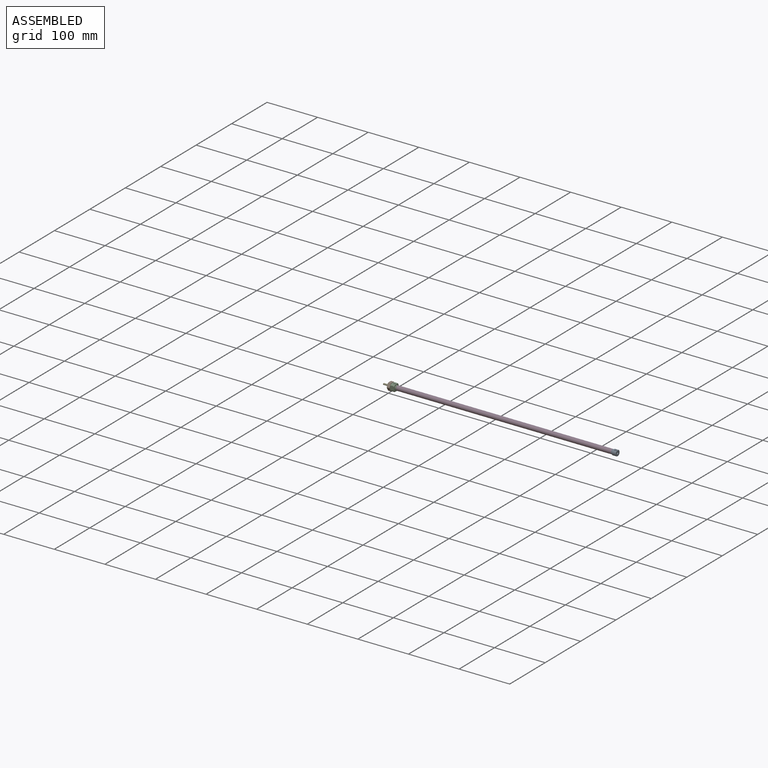
[diagram: assembled view]
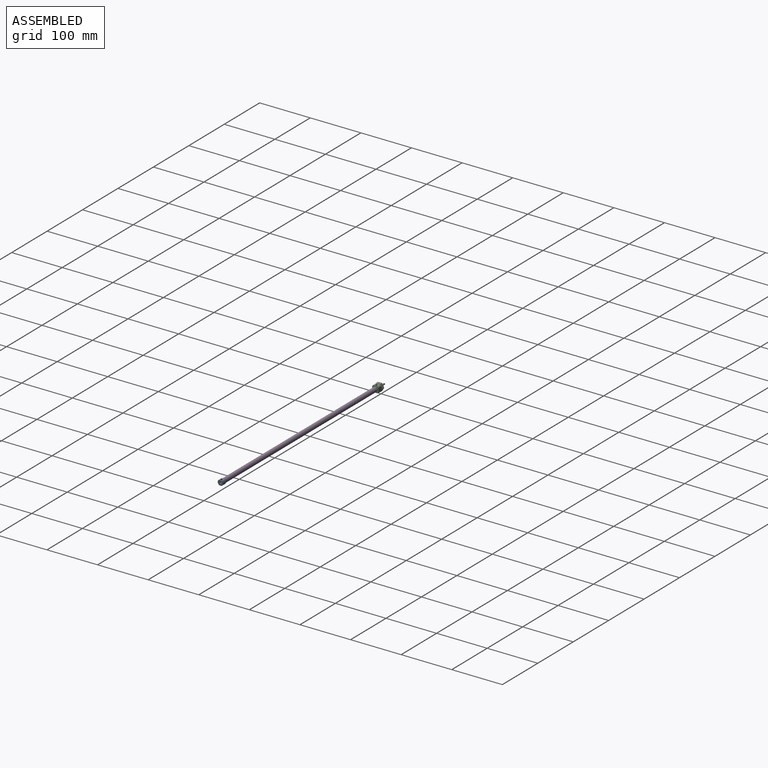
[diagram: assembled view, second angle]
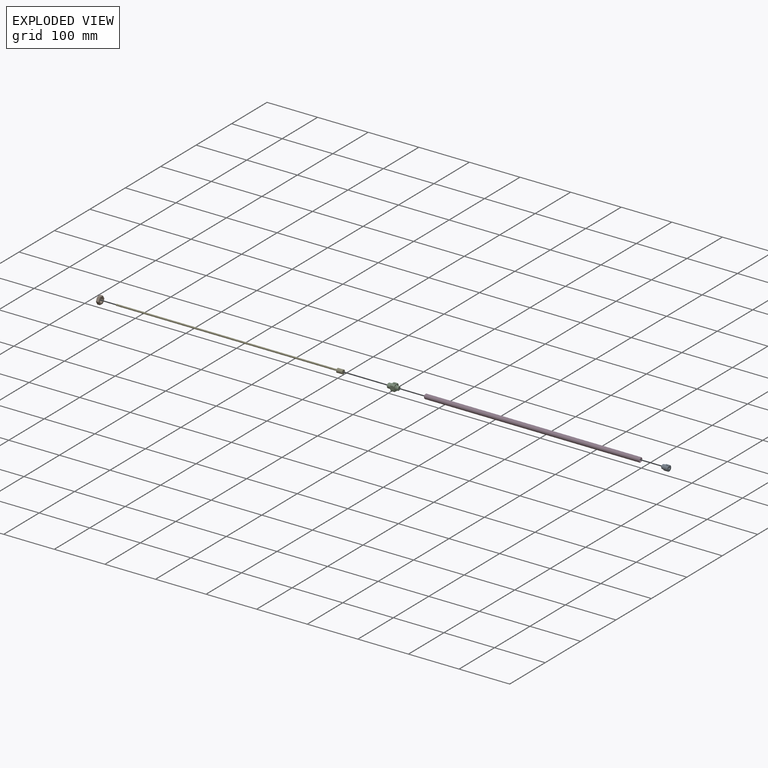
[diagram: exploded view]
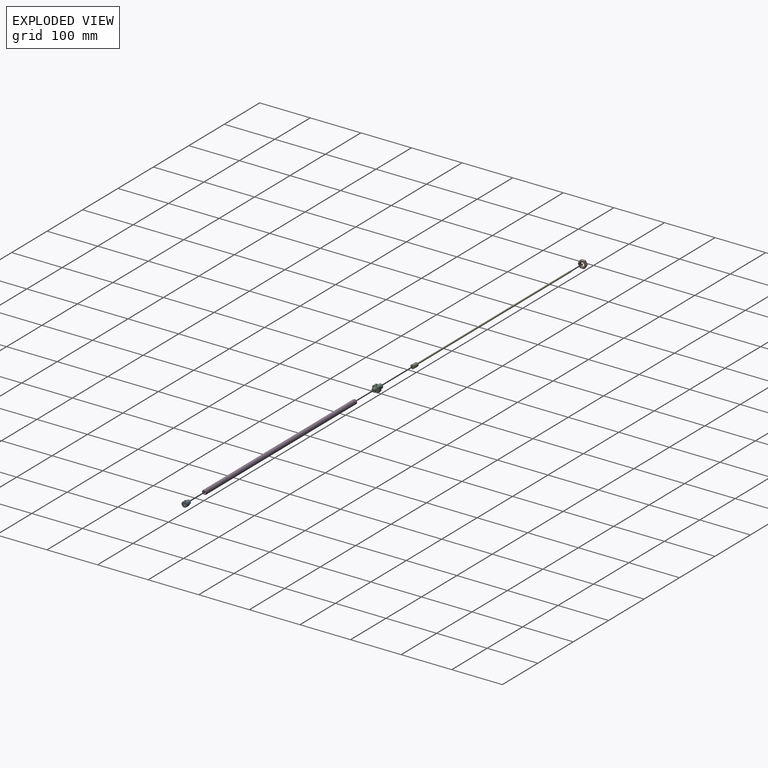
[diagram: exploded view, second angle]
ASSEMBLY  parts=5 mates=4
PART A: 24 faces, bbox 13.6x11.1x10.3 mm
  f0: cylinder r=1.98mm len=13.55mm, axis (-1,0,0), area 153.2mm2, adj f11,f14,f21
  f1: plane 8.22x6.46mm, normal (0,0,1), area 34.4mm2, adj f2,f3,f12,f20,f21,f22,f23
  f2: cone r=5.31mm half-angle=45deg, axis (1,0,0), area 10mm2, adj f1,f3,f23
  f3: plane 10.62x9.84mm, normal (-1,0,0), area 20.3mm2, adj f1,f2,f4
  f4: cylinder r=4.56mm len=9.12mm, axis (-1,0,0), area 30.6mm2, adj f3,f5,f20
  f5: cone r=4.31mm half-angle=45deg, axis (1,0,0), area 10mm2, adj f4,f6
  f6: plane 8.61x8.61mm, normal (-1,0,0), area 6.9mm2, adj f5,f19
  f7: cylinder r=3.52mm len=7.05mm, axis (-1,0,0), area 6.2mm2, adj f8,f18
  f8: cone r=4.08mm half-angle=45deg, axis (-1,0,0), area 18.9mm2, adj f7,f9
  f9: cylinder r=4.08mm len=8.17mm, axis (-1,0,0), area 61.6mm2, adj f8,f10
  f10: cone r=3.58mm half-angle=45deg, axis (1,0,0), area 17.3mm2, adj f9,f11
  f11: plane 7.15x7.15mm, normal (-1,0,0), area 27.8mm2, adj f0,f10
  f12: cone r=1.98mm half-angle=45deg, axis (0,0,1), area 8.4mm2, adj f1,f14
  f13: cylinder r=4.56mm len=9.12mm, axis (-1,0,0), area 5.8mm2, adj f15,f19
  f14: cylinder r=1.98mm len=4.1mm, axis (0,0,-1), area 35.4mm2, adj f0,f12
  f15: plane 9.12x9.12mm, normal (-1,0,0), area 2.4mm2, adj f13,f16
  f16: cone r=4.48mm half-angle=45deg, axis (-1,0,0), area 22.5mm2, adj f15,f17
  f17: torus R=3.78mm, axis (1,0,0), area 4.7mm2, adj f16,f18
  f18: cone r=3.69mm half-angle=45deg, axis (1,0,0), area 5.3mm2, adj f7,f17
  f19: cone r=4.04mm half-angle=45deg, axis (-1,0,0), area 19.7mm2, adj f6,f13
  f20: plane 0.96x0.03mm, normal (1,0,0), area 0mm2, adj f1,f4
  f21: plane 10.62x9.84mm, normal (1,0,0), area 73.3mm2, adj f0,f1,f22
  f22: cone r=5.56mm half-angle=45deg, axis (-1,0,0), area 10mm2, adj f1,f21,f23
  f23: cylinder r=5.56mm len=11.13mm, axis (-1,0,0), area 216.1mm2, adj f1,f2,f22
PART B: 23 faces, bbox 17x17x6.2 mm
  f0: plane 7.71x6.18mm, normal (0.5,-0.87,0), area 44.2mm2, adj f1,f6,f8,f10,f18,f19
  f1: plane 7.71x6.18mm, normal (-0.5,-0.87,0), area 44.2mm2, adj f0,f3,f7,f10,f17,f18
  f2: plane 14.22x14.22mm, normal (0,0,-1), area 87.6mm2, adj f7,f8,f9,f10,f12,f13,f15
  f3: cone r=7.11mm half-angle=75deg, axis (0,0,-1), area 4.5mm2, adj f1,f16,f17
  f4: plane 7.71x6.18mm, normal (-0.5,0.87,0), area 44.2mm2, adj f5,f9,f13,f17,f21,f22
  f5: plane 7.71x6.18mm, normal (0.5,0.87,0), area 44.2mm2, adj f4,f6,f12,f13,f20,f21
  f6: plane 8.82x6.2mm, normal (1,0,0), area 44.2mm2, adj f0,f5,f8,f12,f19,f20
  f7: cone r=8.53mm half-angle=75deg, axis (0,0,1), area 4.5mm2, adj f1,f2,f17
  f8: cone r=8.53mm half-angle=75deg, axis (0,0,1), area 4.5mm2, adj f0,f2,f6
  f9: cone r=8.53mm half-angle=75deg, axis (0,0,1), area 4.5mm2, adj f2,f4,f17
  f10: cone r=8.53mm half-angle=75deg, axis (0,0,1), area 4.5mm2, adj f0,f1,f2
  f11: cone r=4.76mm half-angle=45deg, axis (0,0,1), area 22.8mm2, adj f14,f16
  f12: cone r=8.53mm half-angle=75deg, axis (0,0,1), area 4.5mm2, adj f2,f5,f6
  f13: cone r=8.53mm half-angle=75deg, axis (0,0,1), area 4.5mm2, adj f2,f4,f5
  f14: cylinder r=4.19mm len=8.38mm, axis (0,0,1), area 116.9mm2, adj f11,f15
  f15: cone r=4.19mm half-angle=45deg, axis (0,0,-1), area 22.8mm2, adj f2,f14
  f16: plane 14.22x14.22mm, normal (0,0,1), area 87.6mm2, adj f3,f11,f18,f19,f20,f21,f22
  f17: plane 8.82x6.2mm, normal (-1,0,0), area 44.2mm2, adj f1,f3,f4,f7,f9,f22
  f18: cone r=7.11mm half-angle=75deg, axis (0,0,-1), area 4.5mm2, adj f0,f1,f16
  f19: cone r=7.11mm half-angle=75deg, axis (0,0,-1), area 4.5mm2, adj f0,f6,f16
  f20: cone r=7.11mm half-angle=75deg, axis (0,0,-1), area 4.5mm2, adj f5,f6,f16
  f21: cone r=7.11mm half-angle=75deg, axis (0,0,-1), area 4.5mm2, adj f4,f5,f16
  f22: cone r=7.11mm half-angle=75deg, axis (0,0,-1), area 4.5mm2, adj f4,f16,f17
PART C: 40 faces, bbox 21.6x14.2x14.2 mm
  f0: plane 8.78x8.06mm, normal (0,-1,0), area 66.4mm2, adj f7,f19,f27,f28,f32,f33,f35,f37
  f1: cone r=6.92mm half-angle=45deg, axis (1,0,0), area 4.4mm2, adj f2,f31,f34,f37
  f2: plane 8.78x8.06mm, normal (0,1,0), area 66.4mm2, adj f1,f19,f20,f29,f34,f36,f37,f39
  f3: cylinder r=1.98mm len=5.92mm, axis (0,0,-1), area 65.9mm2, adj f4,f5,f6,f10
  f4: plane 2.27x0.36mm, normal (0,0,1), area 0.6mm2, adj f3,f6
  f5: plane 2.27x0.36mm, normal (0,0,1), area 0.6mm2, adj f3,f6
  f6: cylinder r=1.63mm len=21.08mm, axis (-1,0,0), area 201.6mm2, adj f3,f4,f5,f23,f24
  f7: cone r=6.92mm half-angle=45deg, axis (1,0,0), area 4.4mm2, adj f0,f31,f33,f37
  f8: cone r=3.52mm half-angle=45deg, axis (1,0,0), area 18.9mm2, adj f9,f21
  f9: cylinder r=3.52mm len=7.05mm, axis (-1,0,0), area 6.2mm2, adj f8,f12
  f10: cone r=1.98mm half-angle=45deg, axis (0,0,1), area 8.4mm2, adj f3,f31
  f11: cone r=4.56mm half-angle=45deg, axis (1,0,0), area 19.7mm2, adj f16,f17
  f12: cone r=3.52mm half-angle=45deg, axis (-1,0,0), area 5.3mm2, adj f9,f13
  f13: torus R=3.78mm, axis (1,0,0), area 4.7mm2, adj f12,f14
  f14: cone r=3.87mm half-angle=45deg, axis (1,0,0), area 22.5mm2, adj f13,f15
  f15: plane 9.12x9.12mm, normal (1,0,0), area 2.4mm2, adj f14,f16
  f16: cylinder r=4.56mm len=9.12mm, axis (-1,0,0), area 5.8mm2, adj f11,f15
  f17: plane 9.12x9.12mm, normal (1,0,0), area 14mm2, adj f11,f18
  f18: cylinder r=4.56mm len=9.12mm, axis (-1,0,0), area 45.1mm2, adj f17,f19
  f19: plane 12.7x12.7mm, normal (1,0,0), area 76.7mm2, adj f0,f2,f18,f20,f27,f28,f29,f30
  f20: cone r=7.68mm half-angle=45deg, axis (-1,0,0), area 4.4mm2, adj f2,f19,f30,f36
  f21: cylinder r=4.08mm len=8.17mm, axis (-1,0,0), area 61.6mm2, adj f8,f22
  f22: cone r=4.08mm half-angle=45deg, axis (-1,0,0), area 17.3mm2, adj f21,f23
  f23: plane 7.15x7.15mm, normal (1,0,0), area 31.9mm2, adj f6,f22
  f24: cone r=2.01mm half-angle=45deg, axis (-1,0,0), area 6.1mm2, adj f6,f25
  f25: plane 8.27x8.27mm, normal (-1,0,0), area 41mm2, adj f24,f26
  f26: cone r=4.13mm half-angle=45deg, axis (1,0,0), area 24.9mm2, adj f25,f38
  f27: cone r=7.68mm half-angle=45deg, axis (-1,0,0), area 4.4mm2, adj f0,f19,f31,f33
  f28: cone r=7.68mm half-angle=45deg, axis (-1,0,0), area 4.4mm2, adj f0,f19,f30,f32
  f29: cone r=7.68mm half-angle=45deg, axis (-1,0,0), area 4.4mm2, adj f2,f19,f31,f34
  f30: plane 8.78x8.06mm, normal (0,0,-1), area 66.4mm2, adj f19,f20,f28,f32,f35,f36,f37,f39
  f31: plane 8.78x8.06mm, normal (0,0,1), area 48.1mm2, adj f1,f7,f10,f19,f27,f29,f33,f34
  f32: cylinder r=7.68mm len=6.41mm, axis (-1,0,0), area 18.5mm2, adj f0,f28,f30,f35
  f33: cylinder r=7.68mm len=6.41mm, axis (-1,0,0), area 18.5mm2, adj f0,f7,f27,f31
  f34: cylinder r=7.68mm len=6.41mm, axis (-1,0,0), area 18.5mm2, adj f1,f2,f29,f31
  f35: cone r=6.92mm half-angle=45deg, axis (1,0,0), area 4.4mm2, adj f0,f30,f32,f37
  f36: cylinder r=7.68mm len=6.41mm, axis (-1,0,0), area 18.5mm2, adj f2,f20,f30,f39
  f37: plane 12.7x12.7mm, normal (-1,0,0), area 70.8mm2, adj f0,f1,f2,f7,f30,f31,f35,f38
  f38: cylinder r=4.76mm len=9.53mm, axis (-1,0,0), area 218.3mm2, adj f26,f37
  f39: cone r=6.92mm half-angle=45deg, axis (1,0,0), area 4.4mm2, adj f2,f30,f36,f37
PART D: 14 faces, bbox 426.2x9.9x9.9 mm
  f0: cone r=4.4mm half-angle=45deg, axis (1,0,0), area 19.3mm2, adj f1,f13
  f1: torus R=3.78mm, axis (1,0,0), area 4.7mm2, adj f0,f2
  f2: cone r=3.69mm half-angle=45deg, axis (-1,0,0), area 5.3mm2, adj f1,f3
  f3: cylinder r=3.52mm len=7.05mm, axis (-1,0,0), area 6.2mm2, adj f2,f4
  f4: cone r=3.52mm half-angle=45deg, axis (1,0,0), area 18.9mm2, adj f3,f5
  f5: cylinder r=4.08mm len=424.08mm, axis (-1,0,0), area 10879.5mm2, adj f4,f6
  f6: cone r=4.08mm half-angle=45deg, axis (-1,0,0), area 18.9mm2, adj f5,f7
  f7: cylinder r=3.52mm len=7.05mm, axis (-1,0,0), area 6.2mm2, adj f6,f8
  f8: cone r=3.52mm half-angle=45deg, axis (1,0,0), area 5.3mm2, adj f7,f9
  f9: torus R=3.78mm, axis (1,0,0), area 4.7mm2, adj f8,f10
  f10: cone r=3.87mm half-angle=45deg, axis (-1,0,0), area 19.3mm2, adj f9,f11
  f11: torus R=4mm, axis (1,0,0), area 12.4mm2, adj f10,f12
  f12: cylinder r=4.56mm len=424.24mm, axis (-1,0,0), area 12153.3mm2, adj f11,f13
  f13: torus R=4mm, axis (1,0,0), area 12.4mm2, adj f0,f12
PART E: 10 faces, bbox 449.4x8.1x8.1 mm
  f0: cylinder r=1.33mm len=2.67mm, axis (-1,0,0), area 2.1mm2, adj f1,f2
  f1: plane 3.18x3.18mm, normal (1,0,0), area 2.3mm2, adj f0,f6
  f2: plane 3.18x3.18mm, normal (-1,0,0), area 2.3mm2, adj f0,f4
  f3: plane 8.06x8.06mm, normal (1,0,0), area 51.1mm2, adj f9
  f4: cylinder r=1.59mm len=427.86mm, axis (-1,0,0), area 4267.7mm2, adj f2,f5
  f5: plane 8.06x8.06mm, normal (-1,0,0), area 43.2mm2, adj f4,f9
  f6: cylinder r=1.59mm len=9.02mm, axis (-1,0,0), area 90mm2, adj f1,f7
  f7: cone r=1.21mm half-angle=45deg, axis (1,0,0), area 4.7mm2, adj f6,f8
  f8: plane 2.42x2.42mm, normal (-1,0,0), area 4.6mm2, adj f7
  f9: cylinder r=4.03mm len=11.86mm, axis (-1,0,0), area 300.5mm2, adj f3,f5
PLACE A t=(439.72,0,0)mm
PLACE B rot(axis=(0,1,0),90deg) t=(7.92,0,0)mm
PLACE C at identity
PLACE D t=(18,0,0)mm
PLACE E at identity
MATE fastened C.f1 <-> D.f0  axis (1,0,0) through (17.55,0,0)mm
MATE fastened A.f17 <-> D.f0  axis (1,0,0) through (443.64,0,0)mm
MATE fastened B.f3 <-> C.f1  axis (1,0,0) through (7.92,0,0)mm
MATE slider E.f0 <-> A.f0  axis (1,0,0) through (439.72,0,0)mm
